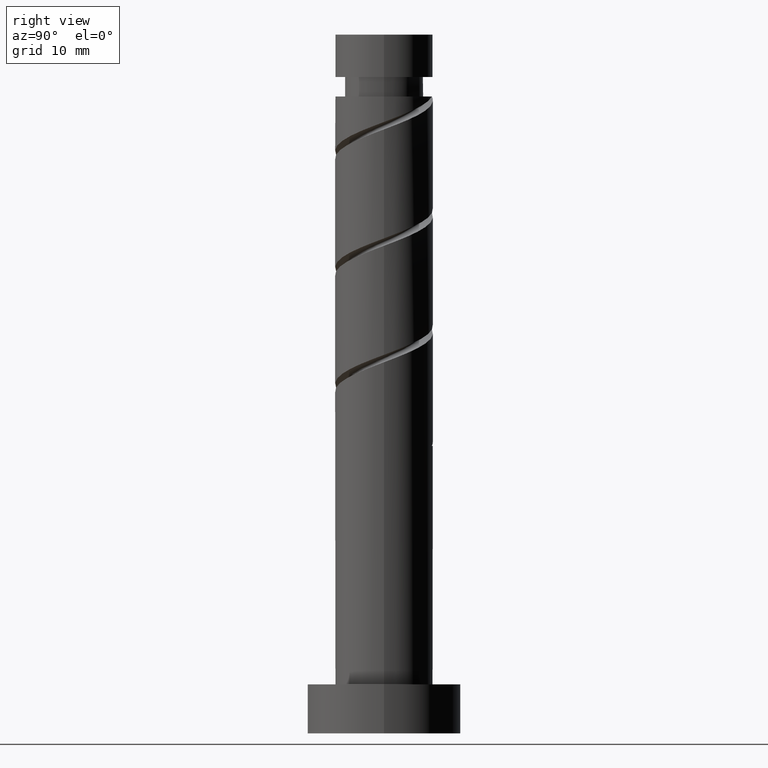
[diagram: clean part render]
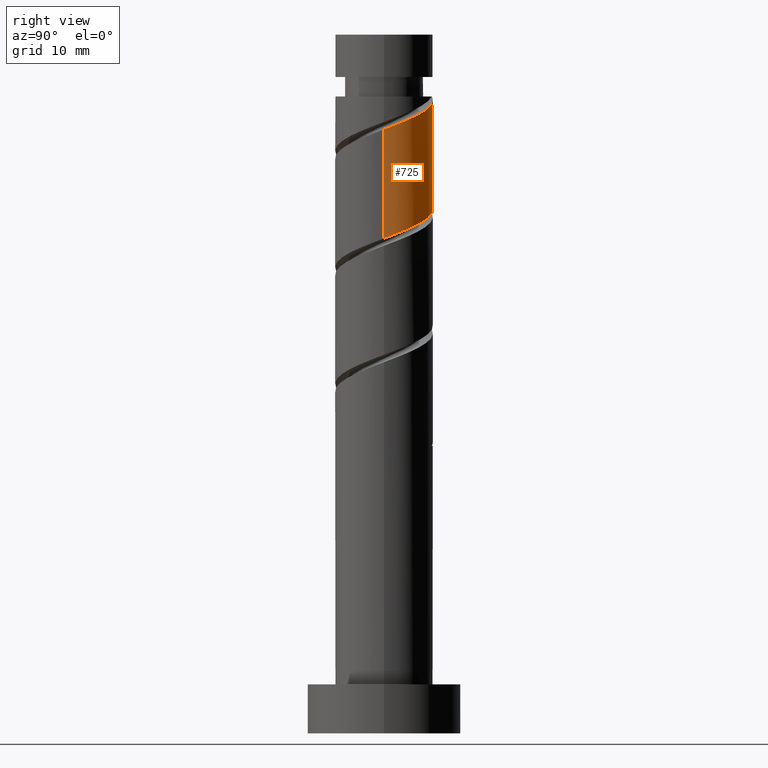
[diagram: same view with one face highlighted and labeled with its STEP entity id]
A machine part, right view. The second image highlights one B-rep face of the part: STEP entity #725.
In plain terms, the highlighted cylindrical surface (partial cylindrical patch) has radius 7 mm, axis along (-0, -0, -1).
Its self-contained STEP definition (entity closure, byte-faithful):
#14 = CARTESIAN_POINT ( 'NONE',  ( -4.426928028896096379, 5.561094966743197254, 76.79789724674981244 ) ) ;
#21 = CARTESIAN_POINT ( 'NONE',  ( -6.999999999999998224, 0.09031172032414555573, 79.14658661299135645 ) ) ;
#39 = CARTESIAN_POINT ( 'NONE',  ( -6.061958099077132900, 3.711621344802776168, 77.72382317267573626 ) ) ;
#42 = CARTESIAN_POINT ( 'NONE',  ( 6.965826557536224151, 1.414471410982078625, 86.98308243193498868 ) ) ;
#49 = CARTESIAN_POINT ( 'NONE',  ( 2.257945103930814490, 6.739818462673713206, 89.76086020971278856 ) ) ;
#128 = CARTESIAN_POINT ( 'NONE',  ( -2.257945103930805608, 6.739818462673701660, 75.87197132082384599 ) ) ;
#149 = CARTESIAN_POINT ( 'NONE',  ( 6.245337423366329688, 3.393999038076235042, 72.16826761712015070 ) ) ;
#158 = CARTESIAN_POINT ( 'NONE',  ( -6.999999999999999112, -4.242666499317841023E-15, 79.18060398692371393 ) ) ;
#161 = DIRECTION ( 'NONE',  ( -0.000000000000000000, -0.000000000000000000, -1.000000000000000000 ) ) ;
#221 = LINE ( 'NONE', #1015, #413 ) ;
#250 = CARTESIAN_POINT ( 'NONE',  ( 0.1833793242891981479, 7.105620382879009433, 74.94604539489793638 ) ) ;
#258 = CARTESIAN_POINT ( 'NONE',  ( 7.000000000000009770, 0.09031172032415370199, 86.48624491754520704 ) ) ;
#262 = CARTESIAN_POINT ( 'NONE',  ( -3.342436566413450993, 6.150456714708447237, 76.33493428378680790 ) ) ;
#267 = EDGE_CURVE ( 'NONE', #577, #1052, #552, .T. ) ;
#278 = CARTESIAN_POINT ( 'NONE',  ( 5.244443063986622633, 4.636358155772992262, 88.37197132082386020 ) ) ;
#351 = EDGE_LOOP ( 'NONE', ( #485, #514, #798, #740, #950 ) ) ;
#359 = CARTESIAN_POINT ( 'NONE',  ( 1.037282889820812182, 6.922719422776363096, 90.22382317267570784 ) ) ;
#363 = CARTESIAN_POINT ( 'NONE',  ( -6.965826557536210828, 1.414471410982078625, 78.64974909860164587 ) ) ;
#413 = VECTOR ( 'NONE', #1346, 1000.000000000000000 ) ;
#450 = CARTESIAN_POINT ( 'NONE',  ( 7.000000000000008882, 3.704863703629635938E-15, 86.45222754361286377 ) ) ;
#468 = CARTESIAN_POINT ( 'NONE',  ( 7.000000000000000000, 9.411548924543097934E-16, 70.84727065359038534 ) ) ;
#485 = ORIENTED_EDGE ( 'NONE', *, *, #590, .F. ) ;
#496 = VECTOR ( 'NONE', #161, 1000.000000000000000 ) ;
#498 = CARTESIAN_POINT ( 'NONE',  ( 7.000000000000000000, 1.141380602743192529, 71.27719016595601431 ) ) ;
#503 = CARTESIAN_POINT ( 'NONE',  ( 1.392982411949269306, 6.859999999999997655, 74.48308243193496025 ) ) ;
#514 = ORIENTED_EDGE ( 'NONE', *, *, #559, .T. ) ;
#552 = CIRCLE ( 'NONE', #1384, 7.000000000000002665 ) ;
#559 = EDGE_CURVE ( 'NONE', #716, #582, #1181, .T. ) ;
#565 = CARTESIAN_POINT ( 'NONE',  ( -6.999999999999999112, -4.242666499317841023E-15, 79.18060398692371393 ) ) ;
#577 = VERTEX_POINT ( 'NONE', #1415 ) ;
#582 = VERTEX_POINT ( 'NONE', #845 ) ;
#590 = EDGE_CURVE ( 'NONE', #716, #1052, #688, .T. ) ;
#597 = CARTESIAN_POINT ( 'NONE',  ( 3.655233476607374854, 5.969863334406302791, 73.55715650600905064 ) ) ;
#600 = CARTESIAN_POINT ( 'NONE',  ( -1.392982411949267529, 6.860000000000013642, 91.14974909860170271 ) ) ;
#620 = CARTESIAN_POINT ( 'NONE',  ( 6.997670043020834285, 0.1805933803021416428, 86.52011946897199834 ) ) ;
#633 = CARTESIAN_POINT ( 'NONE',  ( 7.000000000000000888, 8.572527594031472204E-16, 100.0000000000000000 ) ) ;
#688 =( BOUNDED_CURVE ( )  B_SPLINE_CURVE ( 2, ( #1286, #258, #620, #42, #863, #1305, #278, #749, #1199, #49, #359, #715, #600 ),
 .UNSPECIFIED., .F., .T. ) 
 B_SPLINE_CURVE_WITH_KNOTS ( ( 3, 2, 2, 2, 2, 2, 3 ),
 ( 0.6795248053855291737, 0.6805555555555555802, 0.6944444444444443088, 0.7083333333333330373, 0.7222222222222218768, 0.7361111111111107164, 0.7499999999999994449 ),
 .UNSPECIFIED. ) 
 CURVE ( )  GEOMETRIC_REPRESENTATION_ITEM ( )  RATIONAL_B_SPLINE_CURVE ( ( 0.9071930855141265848, 0.9080659294509741963, 0.9090909090909141677, 0.8952797754656484086, 0.9090909090909141677, 0.8952797754656484086, 0.9090909090909141677, 0.8952797754656484086, 0.9090909090909141677, 0.8952797754656484086, 0.9090909090909141677, 0.8952797754656489637, 0.9090909090909136125 ) ) 
 REPRESENTATION_ITEM ( '' )  );
#700 = CARTESIAN_POINT ( 'NONE',  ( -1.037282889820803744, 6.922719422776354214, 75.40900835786089829 ) ) ;
#715 = CARTESIAN_POINT ( 'NONE',  ( -0.1833793242891474107, 7.105620382879013874, 90.68678613563865554 ) ) ;
#716 = VERTEX_POINT ( 'NONE', #450 ) ;
#721 = EDGE_CURVE ( 'NONE', #577, #1338, #221, .T. ) ;
#725 = ADVANCED_FACE ( 'NONE', ( #1461 ), #922, .T. ) ;
#740 = ORIENTED_EDGE ( 'NONE', *, *, #721, .F. ) ;
#749 = CARTESIAN_POINT ( 'NONE',  ( 4.426928028896107925, 5.561094966743206136, 88.83493428378686474 ) ) ;
#798 = ORIENTED_EDGE ( 'NONE', *, *, #1480, .F. ) ;
#808 = CARTESIAN_POINT ( 'NONE',  ( 0.000000000000000000, 0.000000000000000000, 91.14974909860164587 ) ) ;
#824 = CARTESIAN_POINT ( 'NONE',  ( -6.997670043020820962, 0.1805933803021424477, 79.11271206156457936 ) ) ;
#839 = CARTESIAN_POINT ( 'NONE',  ( 6.637425475935879504, 2.223641844227014275, 71.70530465415718879 ) ) ;
#845 = CARTESIAN_POINT ( 'NONE',  ( 7.000000000000000000, 9.411548924543097934E-16, 70.84727065359038534 ) ) ;
#851 = CARTESIAN_POINT ( 'NONE',  ( -5.244443063986612863, 4.636358155772986933, 77.26086020971274593 ) ) ;
#856 =( BOUNDED_CURVE ( )  B_SPLINE_CURVE ( 2, ( #158, #21, #824, #363, #1178, #39, #851, #14, #262, #128, #700, #250, #503, #1188, #597, #1373, #1290, #149, #839, #498, #468 ),
 .UNSPECIFIED., .F., .T. ) 
 B_SPLINE_CURVE_WITH_KNOTS ( ( 3, 2, 2, 2, 2, 2, 2, 2, 2, 2, 3 ),
 ( 0.4295248053855290626, 0.4305555555555555802, 0.4444444444444444198, 0.4583333333333333148, 0.4722222222222222099, 0.4861111111111111049, 0.5000000000000000000, 0.5138888888888888395, 0.5277777777777777901, 0.5416666666666666297, 0.5545248053855290626 ),
 .UNSPECIFIED. ) 
 CURVE ( )  GEOMETRIC_REPRESENTATION_ITEM ( )  RATIONAL_B_SPLINE_CURVE ( ( 0.9071930855141197014, 0.9080659294509674240, 0.9090909090909075063, 0.8952797754656419693, 0.9090909090909075063, 0.8952797754656419693, 0.9090909090909075063, 0.8952797754656419693, 0.9090909090909075063, 0.8952797754656419693, 0.9090909090909075063, 0.8952797754656419693, 0.9090909090909075063, 0.8952797754656419693, 0.9090909090909075063, 0.8952797754656419693, 0.9090909090909075063, 0.8952797754656419693, 0.9090909090909075063, 0.8963047551055820517, 0.9071930855141197014 ) ) 
 REPRESENTATION_ITEM ( '' )  );
#863 = CARTESIAN_POINT ( 'NONE',  ( 6.513892328306682522, 2.563046377892426619, 87.44604539489792217 ) ) ;
#922 = CYLINDRICAL_SURFACE ( 'NONE', #1274, 7.000000000000000888 ) ;
#950 = ORIENTED_EDGE ( 'NONE', *, *, #267, .T. ) ;
#979 = CARTESIAN_POINT ( 'NONE',  ( -1.392982411949267529, 6.860000000000013642, 91.14974909860168850 ) ) ;
#1015 = CARTESIAN_POINT ( 'NONE',  ( -7.000000000000000888, 0.000000000000000000, 100.0000000000000000 ) ) ;
#1029 = DIRECTION ( 'NONE',  ( -0.000000000000000000, -0.000000000000000000, -1.000000000000000000 ) ) ;
#1052 = VERTEX_POINT ( 'NONE', #979 ) ;
#1139 = DIRECTION ( 'NONE',  ( -0.000000000000000000, -0.000000000000000000, -1.000000000000000000 ) ) ;
#1178 = CARTESIAN_POINT ( 'NONE',  ( -6.513892328306670088, 2.563046377892426619, 78.18678613563866975 ) ) ;
#1181 = LINE ( 'NONE', #633, #496 ) ;
#1188 = CARTESIAN_POINT ( 'NONE',  ( 2.602585499609338271, 6.614379617120990318, 74.02011946897201256 ) ) ;
#1199 = CARTESIAN_POINT ( 'NONE',  ( 3.342436566413459431, 6.150456714708457007, 89.29789724674978402 ) ) ;
#1274 = AXIS2_PLACEMENT_3D ( 'NONE', #1366, #1029, #1362 ) ;
#1286 = CARTESIAN_POINT ( 'NONE',  ( 7.000000000000008882, 3.704863703629635938E-15, 86.45222754361286377 ) ) ;
#1290 = CARTESIAN_POINT ( 'NONE',  ( 5.476609438485867898, 4.359673044883925819, 72.63123058008311261 ) ) ;
#1305 = CARTESIAN_POINT ( 'NONE',  ( 6.061958099077146223, 3.711621344802777056, 87.90900835786092671 ) ) ;
#1338 = VERTEX_POINT ( 'NONE', #565 ) ;
#1346 = DIRECTION ( 'NONE',  ( -0.000000000000000000, -0.000000000000000000, -1.000000000000000000 ) ) ;
#1362 = DIRECTION ( 'NONE',  ( -1.000000000000000000, 0.000000000000000000, 0.000000000000000000 ) ) ;
#1363 = DIRECTION ( 'NONE',  ( -1.000000000000000000, 0.000000000000000000, 0.000000000000000000 ) ) ;
#1366 = CARTESIAN_POINT ( 'NONE',  ( 0.000000000000000000, 0.000000000000000000, 100.0000000000000000 ) ) ;
#1373 = CARTESIAN_POINT ( 'NONE',  ( 4.707881453605407884, 5.325347051691620592, 73.09419354304607452 ) ) ;
#1384 = AXIS2_PLACEMENT_3D ( 'NONE', #808, #1139, #1363 ) ;
#1415 = CARTESIAN_POINT ( 'NONE',  ( -7.000000000000002665, 0.000000000000000000, 91.14974909860164587 ) ) ;
#1461 = FACE_OUTER_BOUND ( 'NONE', #351, .T. ) ;
#1480 = EDGE_CURVE ( 'NONE', #1338, #582, #856, .T. ) ;